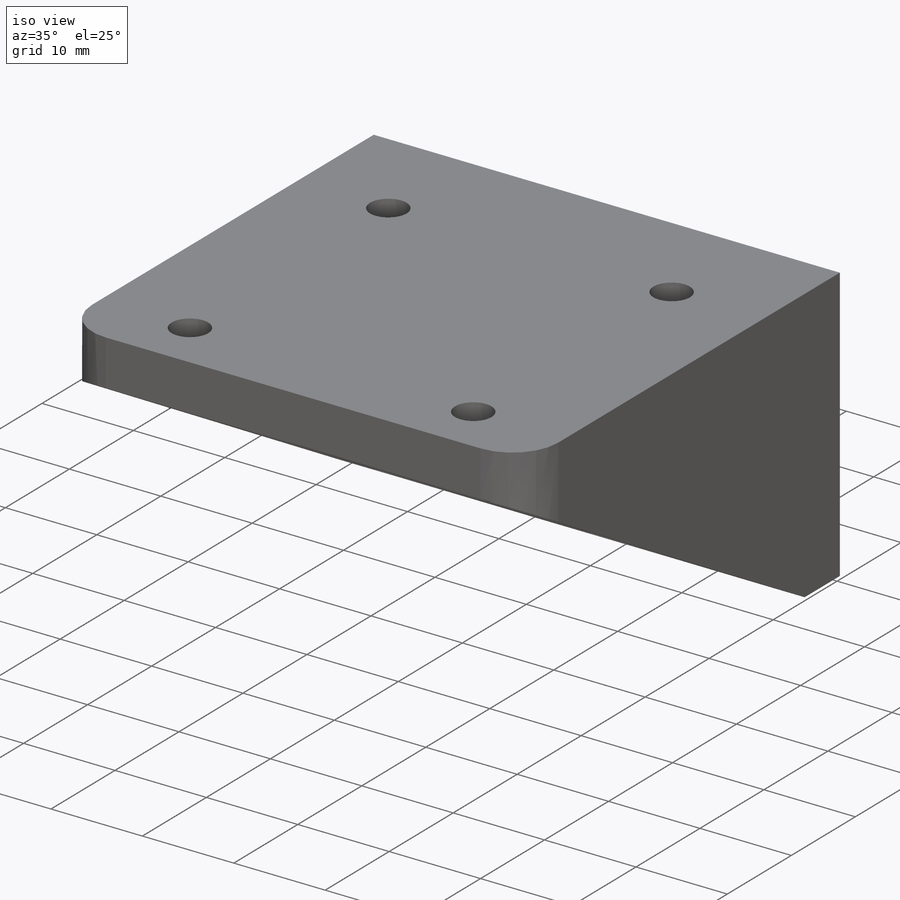
[diagram: iso view]
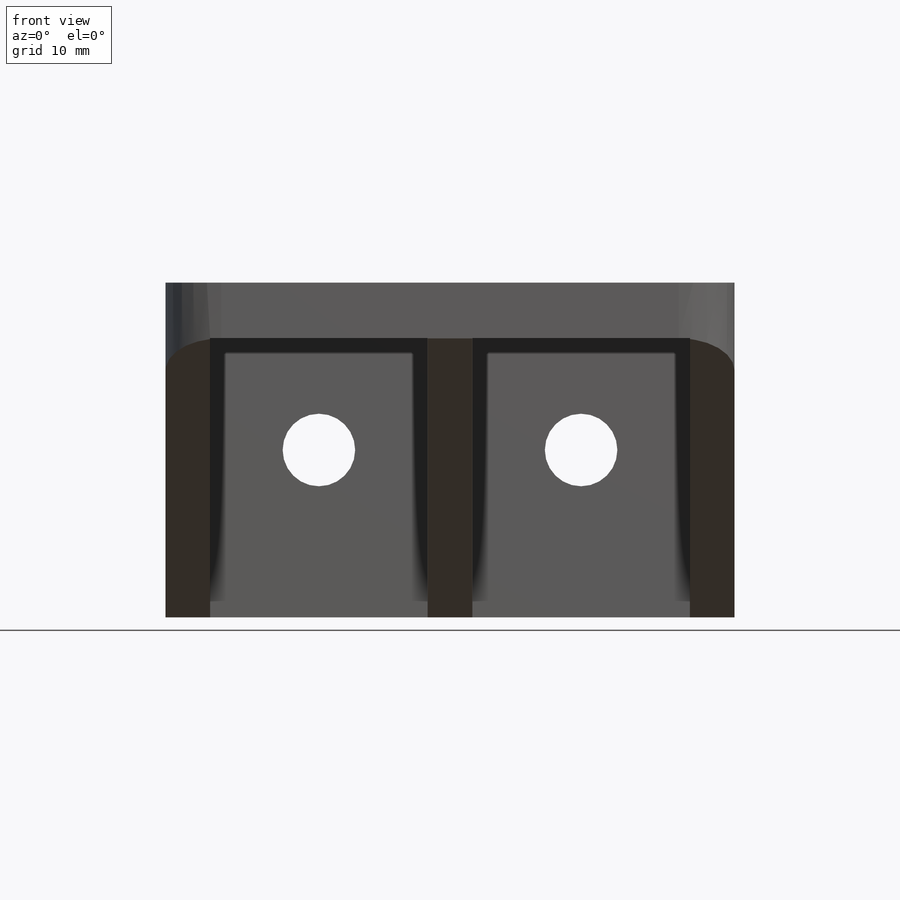
[diagram: front view]
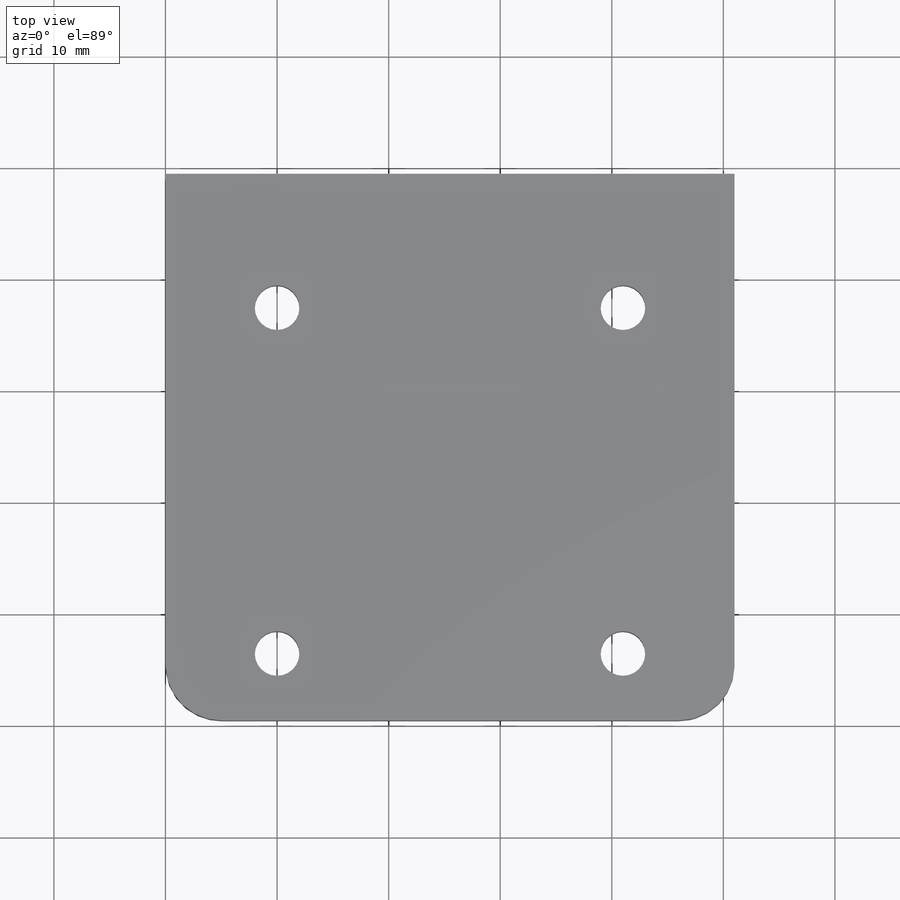
[diagram: top view]
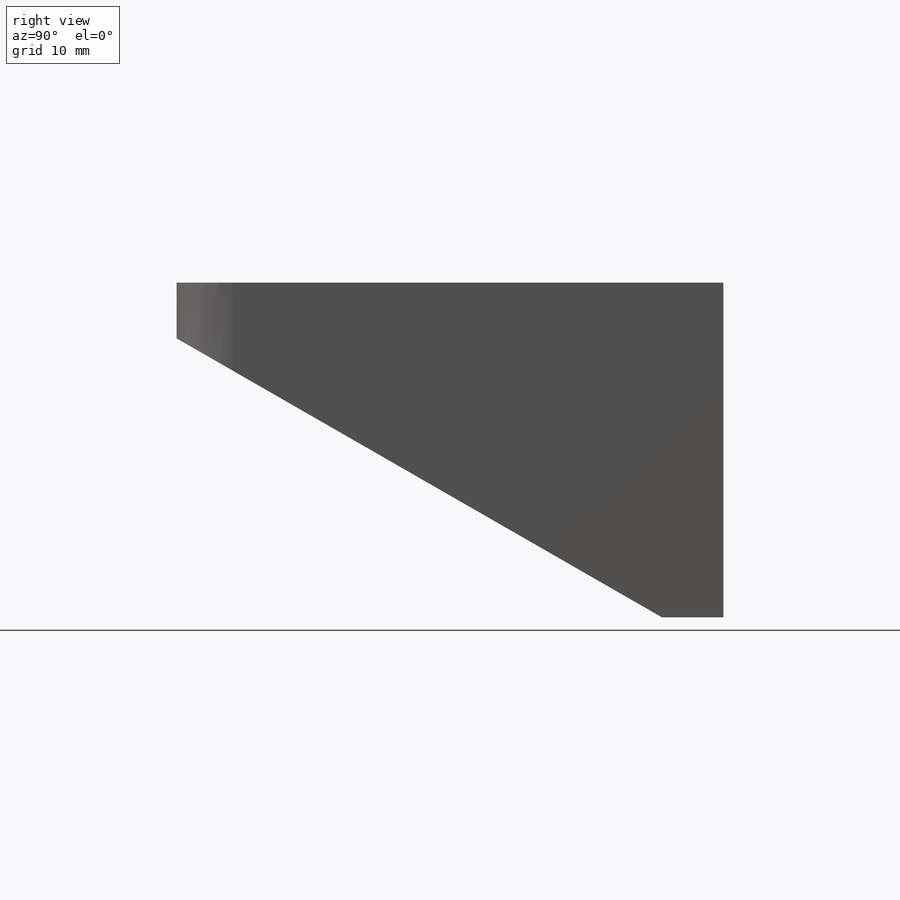
[diagram: right view]
SOLIDWORKS PART (.sldprt)
format: sldprt  version: not decoded by parser v0  size: 253,440 bytes
history: native  units: mm
features: sketch x4, extrude x2, cut_extrude x2, material x1, fillet x1 (+12 scaffold rows collapsed)
feature tree (22):
  scaffold x12  (default folders/planes/origin — collapsed)
  material  "ABS PC"
  sketch  "Sketch1"  dims[c1.D1=19.5mm c1.D2=4.0mm c1.D7=9.5mm c1.D9=4.0mm c1.D10=4.0mm c1.D4=4.0mm c1.D5=4.0mm c1.D6=4.0mm c2.D1=~108.640458mm c2.D2=~60.576606mm c3.D1=50.0mm c3.D2=70.0mm c3.D3=15.5mm c3.D4=15.5mm c3.D5=15.5mm c3.D6=15.5mm c3.D7=43.0mm c3.D8=43.0mm c3.D9=12.0mm c3.D10=6.0mm c4.D3=31.0mm c4.D4=31.0mm c4.D5=10.0mm c4.D6=10.0mm]
  extrude  "Boss-Extrude1"  Depth=5mm
  sketch  "Sketch2"  dims[c1.D3=4.0mm c1.D4=4.0mm c1.D1=70.0mm c1.D2=~4.37131mm c2.D1=5.0mm c2.D2=5.0mm c2.D3=7.0mm c2.D4=7.0mm c3.D1=4.0mm c3.D2=5.5mm]
  extrude  "Boss-Extrude2"  Depth=25mm
  sketch  "Sketch6"  dims[c1.D1=6.5mm c1.D2=6.5mm c1.D3=6.5mm c1.D4=6.5mm c2.D2=9.75mm c2.D3=9.75mm c2.D4=15.0mm]
  cut_extrude  "Cut-Extrude4"  [1 undecoded]
  sketch  "Sketch7"  dims[D1=~43.747991mm]
  cut_extrude  "Cut-Extrude5"  [1 undecoded]
  fillet  "Fillet1"  Radius=5mm
decode coverage: 7 of 9 modeling features carry decoded parameters
note: ~ marks probable driven/reference dimensions
note: 2 parameter values undecoded
note: suppression state not decoded; provenance and decode notes live in map.json
